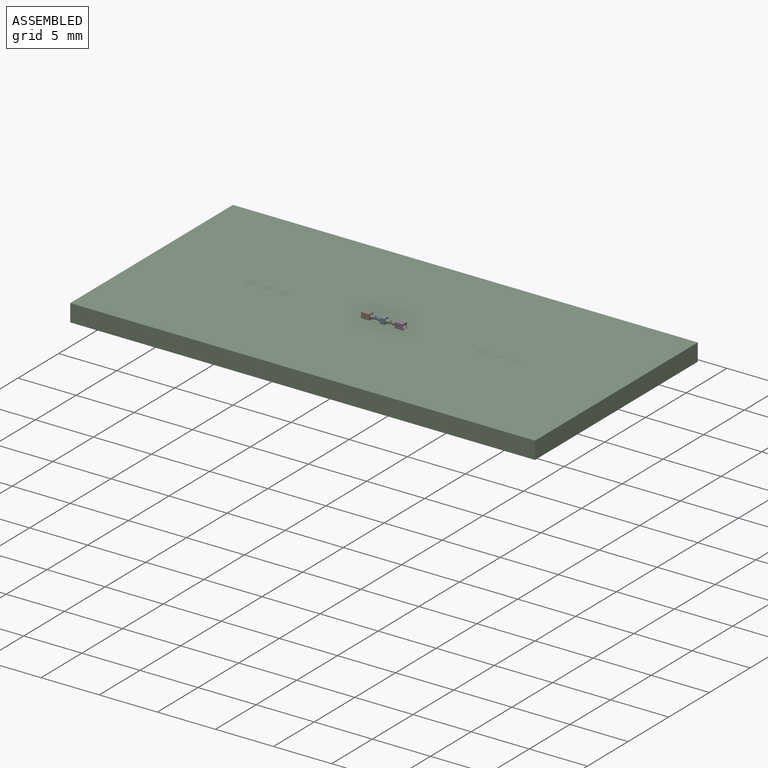
[diagram: assembled view]
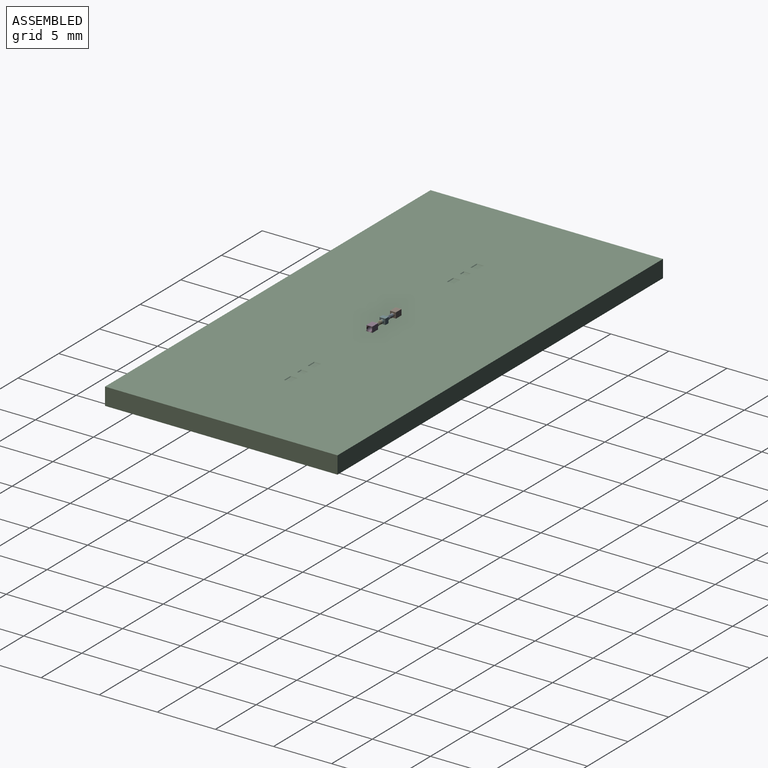
[diagram: assembled view, second angle]
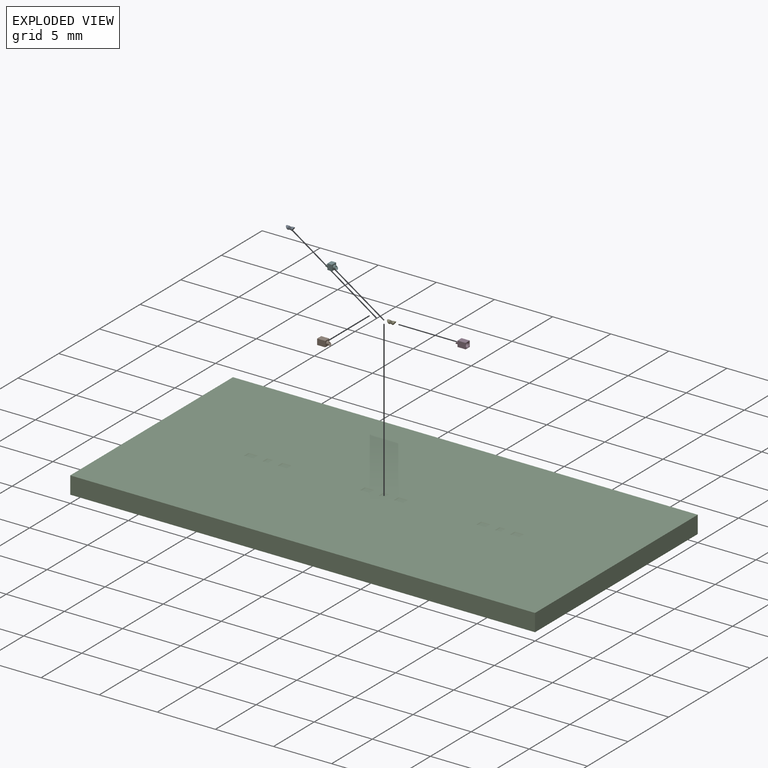
[diagram: exploded view]
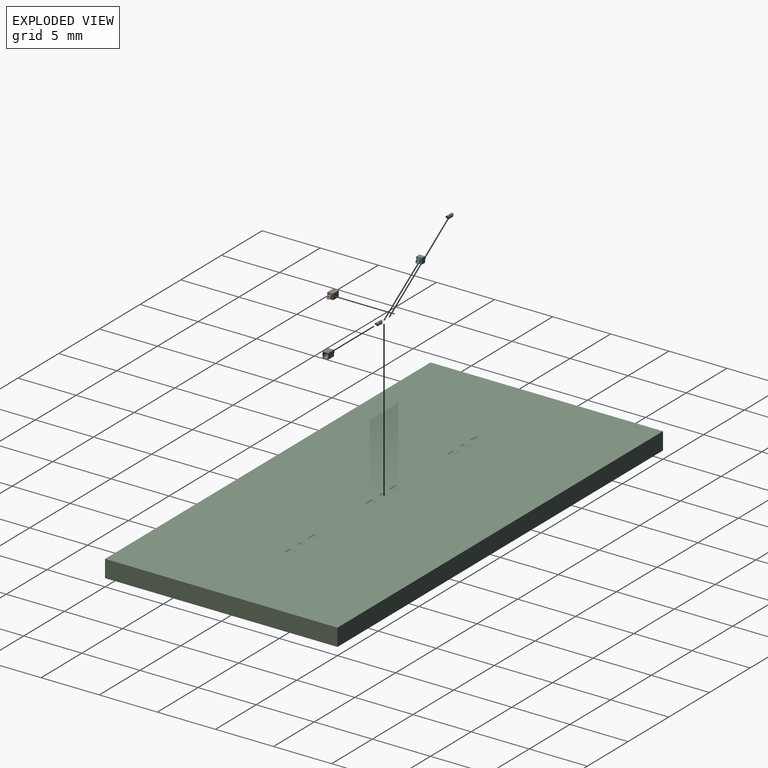
[diagram: exploded view, second angle]
ASSEMBLY  parts=6 mates=5
PART A: 41 faces, bbox 0.7x0.3x0.3 mm
  f0: cylinder r=0.07mm len=0.17mm, axis (-1,0,0), area 0.1mm2, adj f1,f20
  f1: revolved ~0.25x0.25mm, area 0mm2, adj f0,f2
  f2: torus R=0.12mm, axis (-1,0,0), area 0mm2, adj f1,f3
  f3: cone r=0.12mm half-angle=81.4deg, axis (-1,0,0), area 0mm2, adj f2,f4
  f4: torus R=0.05mm, axis (-1,0,0), area 0mm2, adj f3,f5
  f5: cone r=0.12mm half-angle=81.4deg, axis (1,0,0), area 0mm2, adj f4,f6
  f6: torus R=0.12mm, axis (-1,0,0), area 0mm2, adj f5,f7
  f7: cone r=0.12mm half-angle=81.4deg, axis (-1,0,0), area 0mm2, adj f6,f8
  f8: torus R=0.05mm, axis (-1,0,0), area 0mm2, adj f7,f9
  f9: cone r=0.12mm half-angle=81.4deg, axis (1,0,0), area 0mm2, adj f8,f10
  f10: torus R=0.12mm, axis (-1,0,0), area 0mm2, adj f9,f11
  f11: cone r=0.12mm half-angle=81.4deg, axis (-1,0,0), area 0mm2, adj f10,f12
  f12: torus R=0.05mm, axis (-1,0,0), area 0mm2, adj f11,f13
  f13: cone r=0.12mm half-angle=81.4deg, axis (1,0,0), area 0mm2, adj f12,f14
  f14: torus R=0.12mm, axis (-1,0,0), area 0mm2, adj f13,f15
  f15: cone r=0.12mm half-angle=81.4deg, axis (-1,0,0), area 0mm2, adj f14,f16
  f16: torus R=0.05mm, axis (-1,0,0), area 0mm2, adj f15,f17
  f17: cone r=0.12mm half-angle=81.4deg, axis (1,0,0), area 0mm2, adj f16,f18
  f18: torus R=0.12mm, axis (-1,0,0), area 0mm2, adj f17,f19
  f19: revolved ~0.25x0.25mm, area 0.1mm2, adj f18
  f20: plane 0.32x0.32mm, normal (-0.83,-0.55,0), area 0.1mm2, adj f0,f29
  f21: cone r=0.12mm half-angle=81.4deg, axis (1,0,0), area 0mm2, adj f22,f30
  f22: torus R=0.05mm, axis (-1,0,0), area 0mm2, adj f21,f23
  f23: cone r=0.12mm half-angle=81.4deg, axis (-1,0,0), area 0mm2, adj f22,f24
  f24: torus R=0.12mm, axis (-1,0,0), area 0mm2, adj f23,f25
  f25: cone r=0.12mm half-angle=81.4deg, axis (1,0,0), area 0mm2, adj f24,f26
  f26: torus R=0.05mm, axis (-1,0,0), area 0mm2, adj f25,f27
  f27: cone r=0.12mm half-angle=81.4deg, axis (-1,0,0), area 0mm2, adj f26,f28
  f28: torus R=0.11mm, axis (-1,0,0), area 0mm2, adj f27,f29
  f29: cylinder r=0.15mm len=0.3mm, axis (-1,0,0), area 0.1mm2, adj f20,f28
  f30: torus R=0.12mm, axis (-1,0,0), area 0mm2, adj f21,f31
  f31: cone r=0.12mm half-angle=81.4deg, axis (-1,0,0), area 0mm2, adj f30,f32
  f32: torus R=0.05mm, axis (-1,0,0), area 0mm2, adj f31,f33
  f33: cone r=0.12mm half-angle=81.4deg, axis (1,0,0), area 0mm2, adj f32,f34
  f34: torus R=0.12mm, axis (-1,0,0), area 0mm2, adj f33,f35
  f35: cone r=0.12mm half-angle=81.4deg, axis (-1,0,0), area 0mm2, adj f34,f36
  f36: torus R=0.05mm, axis (-1,0,0), area 0mm2, adj f35,f37
  f37: cone r=0.12mm half-angle=81.4deg, axis (1,0,0), area 0mm2, adj f36,f38
  f38: torus R=0.11mm, axis (-1,0,0), area 0.1mm2, adj f37,f39
  f39: cylinder r=0.15mm len=0.3mm, axis (-1,0,0), area 0.1mm2, adj f38,f40
  f40: plane 0.3x0.3mm, normal (0.83,-0.55,0), area 0.1mm2, adj f39
PART B: 12 faces, bbox 1x0.5x0.5 mm
  f0: cylinder r=0.15mm len=0.3mm, axis (-1,0,0), area 0.2mm2, adj f6,f7
  f1: plane 0.7x0.5mm, normal (0,1,0), area 0.3mm2, adj f2,f4,f5,f6
  f2: plane 0.7x0.5mm, normal (0,0,1), area 0.3mm2, adj f1,f3,f5,f6
  f3: plane 0.7x0.5mm, normal (0,-1,0), area 0.3mm2, adj f2,f4,f5,f6
  f4: plane 0.7x0.5mm, normal (0,0,-1), area 0.3mm2, adj f1,f3,f5,f6
  f5: plane 0.5x0.5mm, normal (-1,0,0), area 0.1mm2, adj f1,f2,f3,f4,f11
  f6: plane 0.5x0.5mm, normal (1,0,0), area 0.2mm2, adj f0,f1,f2,f3,f4
  f7: plane 0.3x0.3mm, normal (0.83,0,0.55), area 0.1mm2, adj f0,f10
  f8: cylinder r=0.18mm len=0.55mm, axis (-1,0,0), area 0.6mm2, adj f9,f11
  f9: plane 0.36x0.36mm, normal (-1,0,0), area 0.1mm2, adj f8,f10
  f10: cylinder r=0.07mm len=0.35mm, axis (-1,0,0), area 0.1mm2, adj f7,f9
  f11: cone r=0.18mm half-angle=45deg, axis (-1,0,0), area 0.1mm2, adj f5,f8
PART C: 51 faces, bbox 40x20x1.5 mm
  f0: plane 40x20mm, normal (0,0,1), area 796.2mm2, adj f1,f2,f3,f4,f15,f16,f17,f18
  f1: plane 40x1.5mm, normal (0,1,0), area 60mm2, adj f0,f2,f4,f5
  f2: plane 20x1.5mm, normal (-1,0,0), area 30mm2, adj f0,f1,f3,f5
  f3: plane 40x1.5mm, normal (0,-1,0), area 60mm2, adj f0,f2,f4,f5
  f4: plane 20x1.5mm, normal (1,0,0), area 30mm2, adj f0,f1,f3,f5
  f5: plane 40x20mm, normal (0,0,-1), area 800mm2, adj f1,f2,f3,f4
  f6: plane 0.5x0.4mm, normal (0,0,1), area 0.2mm2, adj f43,f44,f45,f46
  f7: plane 0.7x0.5mm, normal (0,0,1), area 0.3mm2, adj f15,f16,f17,f18
  f8: plane 0.5x0.4mm, normal (0,0,1), area 0.2mm2, adj f19,f20,f21,f22
  f9: plane 0.7x0.5mm, normal (0,0,1), area 0.3mm2, adj f23,f24,f25,f26
  f10: plane 0.7x0.5mm, normal (0,0,1), area 0.3mm2, adj f35,f36,f37,f38
  f11: plane 0.5x0.4mm, normal (0,0,1), area 0.2mm2, adj f31,f32,f33,f34
  f12: plane 0.7x0.5mm, normal (0,0,1), area 0.3mm2, adj f27,f28,f29,f30
  f13: plane 0.7x0.5mm, normal (0,0,1), area 0.3mm2, adj f47,f48,f49,f50
  f14: plane 0.7x0.5mm, normal (0,0,1), area 0.3mm2, adj f39,f40,f41,f42
  f15: plane 0.6x0.05mm, normal (0.71,0,0.71), area 0mm2, adj f0,f7,f16,f17
  f16: plane 0.8x0.05mm, normal (0,0.71,0.71), area 0.1mm2, adj f0,f7,f15,f18
  f17: plane 0.8x0.05mm, normal (0,-0.71,0.71), area 0.1mm2, adj f0,f7,f15,f18
  f18: plane 0.6x0.05mm, normal (-0.71,0,0.71), area 0mm2, adj f0,f7,f16,f17
  f19: plane 0.6x0.05mm, normal (0.71,0,0.71), area 0mm2, adj f0,f8,f20,f21
  f20: plane 0.5x0.05mm, normal (0,-0.71,0.71), area 0mm2, adj f0,f8,f19,f22
  f21: plane 0.5x0.05mm, normal (0,0.71,0.71), area 0mm2, adj f0,f8,f19,f22
  f22: plane 0.6x0.05mm, normal (-0.71,0,0.71), area 0mm2, adj f0,f8,f20,f21
  f23: plane 0.6x0.05mm, normal (0.71,0,0.71), area 0mm2, adj f0,f9,f24,f25
  f24: plane 0.8x0.05mm, normal (0,0.71,0.71), area 0.1mm2, adj f0,f9,f23,f26
  f25: plane 0.8x0.05mm, normal (0,-0.71,0.71), area 0.1mm2, adj f0,f9,f23,f26
  f26: plane 0.6x0.05mm, normal (-0.71,0,0.71), area 0mm2, adj f0,f9,f24,f25
  f27: plane 0.8x0.05mm, normal (0,-0.71,0.71), area 0.1mm2, adj f0,f12,f28,f29
  f28: plane 0.6x0.05mm, normal (0.71,0,0.71), area 0mm2, adj f0,f12,f27,f30
  f29: plane 0.6x0.05mm, normal (-0.71,0,0.71), area 0mm2, adj f0,f12,f27,f30
  f30: plane 0.8x0.05mm, normal (0,0.71,0.71), area 0.1mm2, adj f0,f12,f28,f29
  f31: plane 0.6x0.05mm, normal (0.71,0,0.71), area 0mm2, adj f0,f11,f32,f33
  f32: plane 0.5x0.05mm, normal (0,-0.71,0.71), area 0mm2, adj f0,f11,f31,f34
  f33: plane 0.5x0.05mm, normal (0,0.71,0.71), area 0mm2, adj f0,f11,f31,f34
  f34: plane 0.6x0.05mm, normal (-0.71,0,0.71), area 0mm2, adj f0,f11,f32,f33
  f35: plane 0.6x0.05mm, normal (0.71,0,0.71), area 0mm2, adj f0,f10,f36,f37
  f36: plane 0.8x0.05mm, normal (0,0.71,0.71), area 0.1mm2, adj f0,f10,f35,f38
  f37: plane 0.8x0.05mm, normal (0,-0.71,0.71), area 0.1mm2, adj f0,f10,f35,f38
  f38: plane 0.6x0.05mm, normal (-0.71,0,0.71), area 0mm2, adj f0,f10,f36,f37
  f39: plane 0.8x0.05mm, normal (0,-0.71,0.71), area 0.1mm2, adj f0,f14,f40,f41
  f40: plane 0.6x0.05mm, normal (0.71,0,0.71), area 0mm2, adj f0,f14,f39,f42
  f41: plane 0.6x0.05mm, normal (-0.71,0,0.71), area 0mm2, adj f0,f14,f39,f42
  f42: plane 0.8x0.05mm, normal (0,0.71,0.71), area 0.1mm2, adj f0,f14,f40,f41
  f43: plane 0.5x0.05mm, normal (0,-0.71,0.71), area 0mm2, adj f0,f6,f44,f45
  f44: plane 0.6x0.05mm, normal (0.71,0,0.71), area 0mm2, adj f0,f6,f43,f46
  f45: plane 0.6x0.05mm, normal (-0.71,0,0.71), area 0mm2, adj f0,f6,f43,f46
  f46: plane 0.5x0.05mm, normal (0,0.71,0.71), area 0mm2, adj f0,f6,f44,f45
  f47: plane 0.8x0.05mm, normal (0,-0.71,0.71), area 0.1mm2, adj f0,f13,f48,f49
  f48: plane 0.6x0.05mm, normal (-0.71,0,0.71), area 0mm2, adj f0,f13,f47,f50
  f49: plane 0.6x0.05mm, normal (0.71,0,0.71), area 0mm2, adj f0,f13,f47,f50
  f50: plane 0.8x0.05mm, normal (0,0.71,0.71), area 0.1mm2, adj f0,f13,f48,f49
PART D: same geometry as B
PART E: same geometry as A
PART F: 18 faces, bbox 1x0.5x0.5 mm
  f0: cylinder r=0.15mm len=0.3mm, axis (-1,0,0), area 0.2mm2, adj f6,f12
  f1: cylinder r=0.1mm len=0.37mm, axis (1,0,0), area 0.2mm2, adj f11,f12
  f2: plane 0.5x0.4mm, normal (0,1,0), area 0.2mm2, adj f3,f5,f6,f15
  f3: plane 0.5x0.4mm, normal (0,0,1), area 0.2mm2, adj f2,f4,f6,f15
  f4: plane 0.5x0.4mm, normal (0,-1,0), area 0.2mm2, adj f3,f5,f6,f15
  f5: plane 0.5x0.4mm, normal (0,0,-1), area 0.2mm2, adj f2,f4,f6,f15
  f6: plane 0.5x0.5mm, normal (1,0,0), area 0.2mm2, adj f0,f2,f3,f4,f5
  f7: plane 0.3x0.2mm, normal (0,0,-1), area 0.1mm2, adj f8,f10,f11,f16
  f8: plane 0.3x0.2mm, normal (0,-1,0), area 0.1mm2, adj f7,f9,f11,f16
  f9: plane 0.3x0.2mm, normal (0,0,1), area 0.1mm2, adj f8,f10,f11,f16
  f10: plane 0.3x0.2mm, normal (0,1,0), area 0.1mm2, adj f7,f9,f11,f16
  f11: plane 0.3x0.3mm, normal (-1,0,0), area 0.1mm2, adj f1,f7,f8,f9,f10
  f12: plane 0.3x0.3mm, normal (0.83,0,0.55), area 0mm2, adj f0,f1
  f13: cylinder r=0.15mm len=0.3mm, axis (1,0,0), area 0.2mm2, adj f15,f17
  f14: cylinder r=0.1mm len=0.37mm, axis (-1,0,0), area 0.2mm2, adj f16,f17
  f15: plane 0.5x0.5mm, normal (-1,0,0), area 0.2mm2, adj f2,f3,f4,f5,f13
  f16: plane 0.3x0.3mm, normal (1,0,0), area 0.1mm2, adj f7,f8,f9,f10,f14
  f17: plane 0.3x0.3mm, normal (-0.83,0,0.55), area 0mm2, adj f13,f14
PLACE A rot(axis=(1,0,0),90deg) t=(-0.53,0,0.2)mm
PLACE B t=(-1.1,0,0.2)mm
PLACE C at identity fixed
PLACE D rot(axis=(0,0,-1),180deg) t=(1.1,0,0.2)mm
PLACE E rot(axis=(0,-0.71,-0.71),180deg) t=(0.53,0,0.2)mm
PLACE F t=(0,0,0.2)mm
MATE fastened A.f40 <-> F.f17  axis (0.83,0,-0.55) through (-0.4,0,0.2)mm
MATE fastened E.f40 <-> F.f12  axis (-0.83,0,-0.55) through (0.4,0,0.2)mm
MATE fastened B.f4 <-> C.f13  axis (0,0,-1) through (-1.45,0,-0.05)mm
MATE fastened D.f4 <-> C.f14  axis (0,0,-1) through (1.45,0,-0.05)mm
MATE fastened F.f5 <-> C.f6  axis (0,0,-1) through (0,0,-0.05)mm
